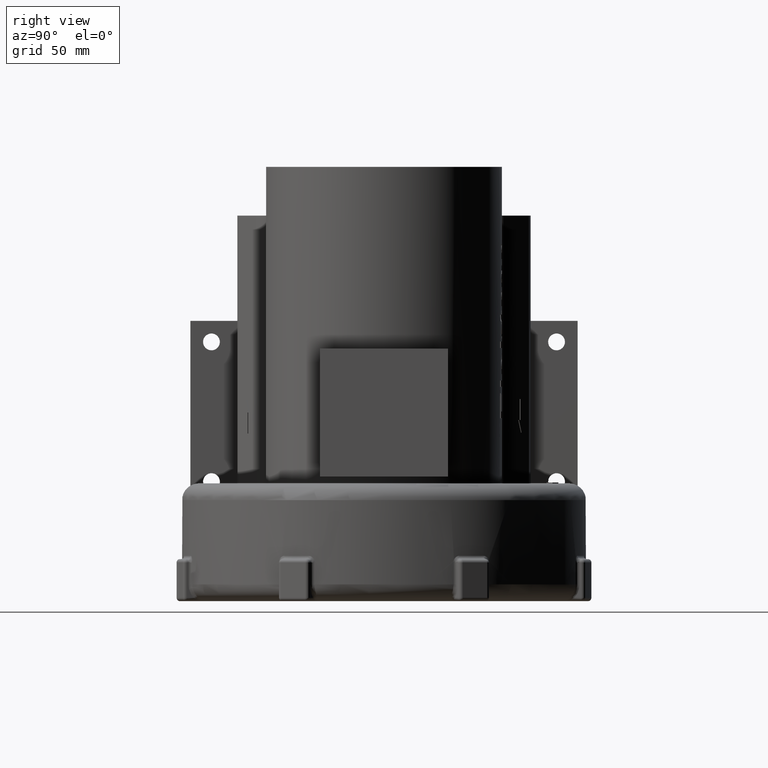
[diagram: clean part render]
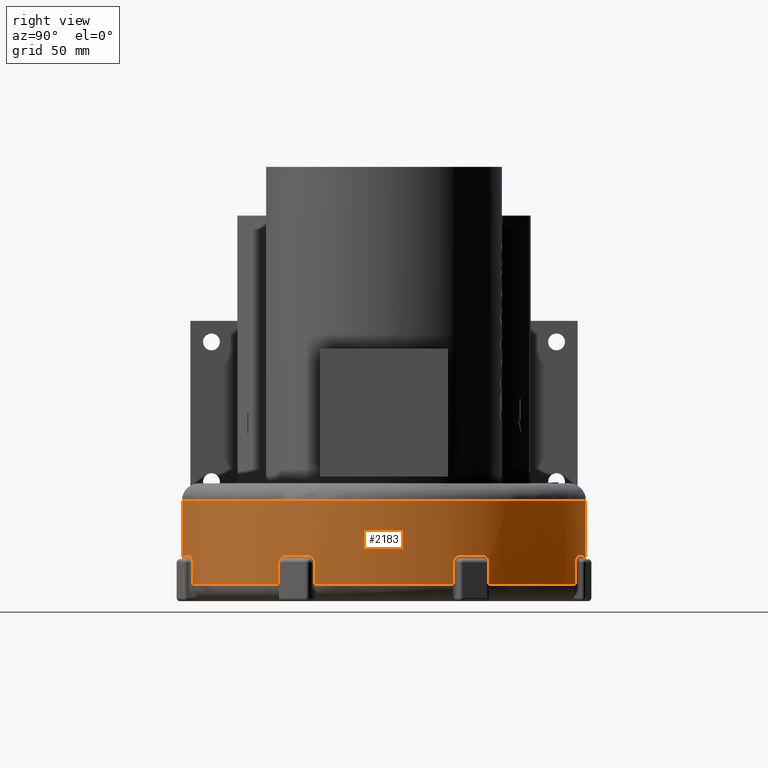
[diagram: same view with one face highlighted and labeled with its STEP entity id]
A machine part, right view. The second image highlights one B-rep face of the part: STEP entity #2183.
In plain terms, the highlighted cylindrical surface (partial cylindrical patch) has radius 120 mm, axis along (0, 0, -1).
Its self-contained STEP definition (entity closure, byte-faithful):
#1267=CARTESIAN_POINT('',(104.4694017343061,59.043577985045616,-45.000000000000007));
#1268=VERTEX_POINT('',#1267);
#1289=CARTESIAN_POINT('',(102.47074046866913,62.447957114725973,-48.999999999999993));
#1290=VERTEX_POINT('',#1289);
#1298=CARTESIAN_POINT('',(102.47074046866913,62.447957114725973,-48.999999999999993));
#1299=CARTESIAN_POINT('',(102.47074046866913,62.447957114725973,-48.105462912643702));
#1300=CARTESIAN_POINT('',(102.74490965086558,62.00145298025695,-46.602906956385659));
#1301=CARTESIAN_POINT('',(103.59579056383687,60.571180417363877,-45.272640582639482));
#1302=CARTESIAN_POINT('',(104.18078604972777,59.554243309336655,-45.000000000000007));
#1303=CARTESIAN_POINT('',(104.4694017343061,59.043577985045623,-45.000000000000007));
#1304=B_SPLINE_CURVE_WITH_KNOTS('',3,(#1298,#1299,#1300,#1301,#1302,#1303),.UNSPECIFIED.,.F.,.U.,(4,1,1,4),(0.0,0.268361126206901,0.447268543678168,0.626175961149435),.UNSPECIFIED.);
#1305=EDGE_CURVE('',#1290,#1268,#1304,.T.);
#1315=CARTESIAN_POINT('',(111.29773581250421,44.864395716536897,-45.0));
#1316=VERTEX_POINT('',#1315);
#1334=CARTESIAN_POINT('',(0.0,0.0,-45.0));
#1335=DIRECTION('',(0.0,0.0,-1.0));
#1336=DIRECTION('',(0.90096887331149,0.433883727885506,0.0));
#1337=AXIS2_PLACEMENT_3D('',#1334,#1335,#1336);
#1338=CIRCLE('',#1337,120.0);
#1339=EDGE_CURVE('',#1268,#1316,#1338,.T.);
#1375=CARTESIAN_POINT('',(112.71324158596633,41.179183711962899,-49.0));
#1376=VERTEX_POINT('',#1375);
#1396=CARTESIAN_POINT('',(111.29773581250421,44.864395716536897,-45.0));
#1397=CARTESIAN_POINT('',(111.62687634170862,44.047877515867697,-45.0));
#1398=CARTESIAN_POINT('',(112.16039797619368,42.67450897383231,-45.522485298805016));
#1399=CARTESIAN_POINT('',(112.62125882132977,41.431703972019449,-47.208786189574994));
#1400=CARTESIAN_POINT('',(112.71324158596633,41.179183711962907,-48.403310889453834));
#1401=CARTESIAN_POINT('',(112.71324158596633,41.179183711962907,-49.0));
#1402=B_SPLINE_CURVE_WITH_KNOTS('',3,(#1396,#1397,#1398,#1399,#1400,#1401),.UNSPECIFIED.,.F.,.U.,(4,1,1,4),(0.0,0.268510099745761,0.447516832909602,0.626523566073443),.UNSPECIFIED.);
#1403=EDGE_CURVE('',#1316,#1376,#1402,.T.);
#1415=CARTESIAN_POINT('',(102.47074046866913,62.447957114725973,-62.0));
#1416=VERTEX_POINT('',#1415);
#1424=CARTESIAN_POINT('',(102.47074046866913,62.447957114725973,-62.0));
#1425=DIRECTION('',(0.0,0.0,1.0));
#1426=VECTOR('',#1425,13.000000000000007);
#1427=LINE('',#1424,#1426);
#1428=EDGE_CURVE('',#1416,#1290,#1427,.T.);
#1571=CARTESIAN_POINT('',(112.71324158596634,41.179183711962907,-62.0));
#1572=VERTEX_POINT('',#1571);
#1589=CARTESIAN_POINT('',(112.71324158596633,41.179183711962907,-49.0));
#1590=DIRECTION('',(0.0,0.0,-1.0));
#1591=VECTOR('',#1590,13.0);
#1592=LINE('',#1589,#1591);
#1593=EDGE_CURVE('',#1376,#1572,#1592,.T.);
#1816=CARTESIAN_POINT('',(112.71324055923438,-41.179186522273163,-62.0));
#1817=VERTEX_POINT('',#1816);
#1818=CARTESIAN_POINT('',(0.0,0.0,-62.0));
#1819=DIRECTION('',(0.0,0.0,-1.0));
#1820=DIRECTION('',(0.0,-1.0,0.0));
#1821=AXIS2_PLACEMENT_3D('',#1818,#1819,#1820);
#1822=CIRCLE('',#1821,120.0);
#1823=EDGE_CURVE('',#1572,#1817,#1822,.T.);
#1858=CARTESIAN_POINT('',(0.0,0.0,-2.0));
#1859=DIRECTION('',(0.0,0.0,-1.0));
#1860=DIRECTION('',(0.0,-1.0,0.0));
#1861=AXIS2_PLACEMENT_3D('',#1858,#1859,#1860);
#1862=CYLINDRICAL_SURFACE('',#1861,120.0);
#1863=ORIENTED_EDGE('',*,*,#1593,.F.);
#1864=ORIENTED_EDGE('',*,*,#1403,.F.);
#1865=ORIENTED_EDGE('',*,*,#1339,.F.);
#1866=ORIENTED_EDGE('',*,*,#1305,.F.);
#1867=ORIENTED_EDGE('',*,*,#1428,.F.);
#1868=CARTESIAN_POINT('',(38.080374414942391,113.79756185620937,-62.0));
#1869=VERTEX_POINT('',#1868);
#1870=CARTESIAN_POINT('',(0.0,0.0,-62.0));
#1871=DIRECTION('',(0.0,0.0,-1.0));
#1872=DIRECTION('',(0.0,-1.0,0.0));
#1873=AXIS2_PLACEMENT_3D('',#1870,#1871,#1872);
#1874=CIRCLE('',#1873,120.0);
#1875=EDGE_CURVE('',#1869,#1416,#1874,.T.);
#1876=ORIENTED_EDGE('',*,*,#1875,.F.);
#1877=CARTESIAN_POINT('',(38.080374414942384,113.79756185620937,-49.0));
#1878=VERTEX_POINT('',#1877);
#1879=CARTESIAN_POINT('',(38.080374414942398,113.7975618562094,-49.0));
#1880=DIRECTION('',(0.0,0.0,-1.0));
#1881=VECTOR('',#1880,13.0);
#1882=LINE('',#1879,#1881);
#1883=EDGE_CURVE('',#1878,#1869,#1882,.T.);
#1884=ORIENTED_EDGE('',*,*,#1883,.F.);
#1885=CARTESIAN_POINT('',(34.316606235971541,114.98856698144073,-45.0));
#1886=VERTEX_POINT('',#1885);
#1887=CARTESIAN_POINT('',(34.316606235971548,114.98856698144073,-45.0));
#1888=CARTESIAN_POINT('',(35.160136456837719,114.73682808950133,-45.0));
#1889=CARTESIAN_POINT('',(36.567775375430756,114.29727429202964,-45.523208081520146));
#1890=CARTESIAN_POINT('',(37.825122402631671,113.88323702214376,-47.208979721699308));
#1891=CARTESIAN_POINT('',(38.080374414942376,113.7975618562094,-48.403356990773531));
#1892=CARTESIAN_POINT('',(38.080374414942376,113.7975618562094,-48.999999999999986));
#1893=B_SPLINE_CURVE_WITH_KNOTS('',3,(#1887,#1888,#1889,#1890,#1891,#1892),.UNSPECIFIED.,.F.,.U.,(4,1,1,4),(0.0,0.268489354151906,0.447482256919844,0.626475159687782),.UNSPECIFIED.);
#1894=EDGE_CURVE('',#1886,#1878,#1893,.T.);
#1895=ORIENTED_EDGE('',*,*,#1894,.F.);
#1896=CARTESIAN_POINT('',(18.973478481357958,118.49053596940747,-45.0));
#1897=VERTEX_POINT('',#1896);
#1898=CARTESIAN_POINT('',(0.0,0.0,-45.0));
#1899=DIRECTION('',(0.0,0.0,-1.0));
#1900=DIRECTION('',(0.222520946110387,0.974927909407736,0.0));
#1901=AXIS2_PLACEMENT_3D('',#1898,#1899,#1900);
#1902=CIRCLE('',#1901,119.99999999999999);
#1903=EDGE_CURVE('',#1897,#1886,#1902,.T.);
#1904=ORIENTED_EDGE('',*,*,#1903,.F.);
#1905=CARTESIAN_POINT('',(15.065682783022014,119.05051533815951,-48.999999999999986));
#1906=VERTEX_POINT('',#1905);
#1907=CARTESIAN_POINT('',(15.065682783022037,119.05051533815951,-48.999999999999986));
#1908=CARTESIAN_POINT('',(15.06568278302205,119.05051533815951,-48.105486915399531));
#1909=CARTESIAN_POINT('',(15.58564952928287,118.98648819673519,-46.602897744193115));
#1910=CARTESIAN_POINT('',(17.234701576116791,118.75992982697105,-45.272446404409017));
#1911=CARTESIAN_POINT('',(18.394290859358179,118.58327927411766,-45.000000000000007));
#1912=CARTESIAN_POINT('',(18.973478481357958,118.49053596940749,-45.0));
#1913=B_SPLINE_CURVE_WITH_KNOTS('',3,(#1907,#1908,#1909,#1910,#1911,#1912),.UNSPECIFIED.,.F.,.U.,(4,1,1,4),(0.0,0.268353925380153,0.447256542300255,0.626159159220357),.UNSPECIFIED.);
#1914=EDGE_CURVE('',#1906,#1897,#1913,.T.);
#1915=ORIENTED_EDGE('',*,*,#1914,.F.);
#1916=CARTESIAN_POINT('',(15.065682783022067,119.0505153381595,-62.0));
#1917=VERTEX_POINT('',#1916);
#1918=CARTESIAN_POINT('',(15.065682783022067,119.05051533815951,-62.0));
#1919=DIRECTION('',(0.0,0.0,1.0));
#1920=VECTOR('',#1919,13.000000000000014);
#1921=LINE('',#1918,#1920);
#1922=EDGE_CURVE('',#1917,#1906,#1921,.T.);
#1923=ORIENTED_EDGE('',*,*,#1922,.F.);
#1924=CARTESIAN_POINT('',(-65.227791388608665,100.72405487550702,-62.0));
#1925=VERTEX_POINT('',#1924);
#1926=CARTESIAN_POINT('',(0.0,0.0,-62.0));
#1927=DIRECTION('',(0.0,0.0,-1.0));
#1928=DIRECTION('',(0.0,-1.0,0.0));
#1929=AXIS2_PLACEMENT_3D('',#1926,#1927,#1928);
#1930=CIRCLE('',#1929,120.0);
#1931=EDGE_CURVE('',#1925,#1917,#1930,.T.);
#1932=ORIENTED_EDGE('',*,*,#1931,.F.);
#1933=CARTESIAN_POINT('',(-65.227791388608665,100.72405487550699,-49.0));
#1934=VERTEX_POINT('',#1933);
#1935=CARTESIAN_POINT('',(-65.227791388608665,100.72405487550702,-49.0));
#1936=DIRECTION('',(0.0,0.0,-1.0));
#1937=VECTOR('',#1936,13.0);
#1938=LINE('',#1935,#1937);
#1939=EDGE_CURVE('',#1934,#1925,#1938,.T.);
#1940=ORIENTED_EDGE('',*,*,#1939,.F.);
#1941=CARTESIAN_POINT('',(-68.505627767444054,98.524001970019469,-45.0));
#1942=VERTEX_POINT('',#1941);
#1943=CARTESIAN_POINT('',(-68.505627767444025,98.524001970019469,-45.0));
#1944=CARTESIAN_POINT('',(-67.782777914591563,99.026613333353367,-45.0));
#1945=CARTESIAN_POINT('',(-66.564323036973491,99.851056864021061,-45.522534104576238));
#1946=CARTESIAN_POINT('',(-65.454255744709712,100.57759448022696,-47.20820965593208));
#1947=CARTESIAN_POINT('',(-65.227791388608679,100.72405487550699,-48.403274462502104));
#1948=CARTESIAN_POINT('',(-65.227791388608679,100.72405487550699,-48.999999999999993));
#1949=B_SPLINE_CURVE_WITH_KNOTS('',3,(#1943,#1944,#1945,#1946,#1947,#1948),.UNSPECIFIED.,.F.,.U.,(4,1,1,4),(0.0,0.268526491874069,0.447544153123448,0.626561814372827),.UNSPECIFIED.);
#1950=EDGE_CURVE('',#1942,#1934,#1949,.T.);
#1951=ORIENTED_EDGE('',*,*,#1950,.F.);
#1952=CARTESIAN_POINT('',(-80.809861056480401,88.71170360235638,-45.0));
#1953=VERTEX_POINT('',#1952);
#1954=CARTESIAN_POINT('',(0.0,0.0,-45.0));
#1955=DIRECTION('',(0.0,0.0,-1.0));
#1956=DIRECTION('',(-0.623489792111924,0.781831490240851,0.0));
#1957=AXIS2_PLACEMENT_3D('',#1954,#1955,#1956);
#1958=CIRCLE('',#1957,119.99999999999999);
#1959=EDGE_CURVE('',#1953,#1942,#1958,.T.);
#1960=ORIENTED_EDGE('',*,*,#1959,.F.);
#1961=CARTESIAN_POINT('',(-83.684141322163228,86.005607324012374,-49.000000000000014));
#1962=VERTEX_POINT('',#1961);
#1963=CARTESIAN_POINT('',(-83.684141322163242,86.005607324012402,-49.000000000000014));
#1964=CARTESIAN_POINT('',(-83.684141322163242,86.005607324012402,-48.10546128266985));
#1965=CARTESIAN_POINT('',(-83.309825386659085,86.372273328258927,-46.602891098793656));
#1966=CARTESIAN_POINT('',(-82.104783094255566,87.520056702624274,-45.272657364762452));
#1967=CARTESIAN_POINT('',(-81.243500693380014,88.316689670896835,-44.999999999999993));
#1968=CARTESIAN_POINT('',(-80.809861056480386,88.71170360235638,-45.0));
#1969=B_SPLINE_CURVE_WITH_KNOTS('',3,(#1963,#1964,#1965,#1966,#1967,#1968),.UNSPECIFIED.,.F.,.U.,(4,1,1,4),(0.0,0.268361615199083,0.447269358665138,0.626177102131193),.UNSPECIFIED.);
#1970=EDGE_CURVE('',#1962,#1953,#1969,.T.);
#1971=ORIENTED_EDGE('',*,*,#1970,.F.);
#1972=CARTESIAN_POINT('',(-83.684141322163242,86.005607324012374,-62.0));
#1973=VERTEX_POINT('',#1972);
#1974=CARTESIAN_POINT('',(-83.684141322163242,86.005607324012374,-62.0));
#1975=DIRECTION('',(0.0,0.0,1.0));
#1976=VECTOR('',#1975,12.999999999999986);
#1977=LINE('',#1974,#1976);
#1978=EDGE_CURVE('',#1973,#1962,#1977,.T.);
#1979=ORIENTED_EDGE('',*,*,#1978,.F.);
#1980=CARTESIAN_POINT('',(-84.056348621555884,85.64187209777387,-62.0));
#1981=VERTEX_POINT('',#1980);
#1982=CARTESIAN_POINT('',(0.0,0.0,-62.0));
#1983=DIRECTION('',(0.0,0.0,-1.0));
#1984=DIRECTION('',(0.0,-1.0,0.0));
#1985=AXIS2_PLACEMENT_3D('',#1982,#1983,#1984);
#1986=CIRCLE('',#1985,120.0);
#1987=EDGE_CURVE('',#1981,#1973,#1986,.T.);
#1988=ORIENTED_EDGE('',*,*,#1987,.F.);
#1989=CARTESIAN_POINT('',(-84.056348621555884,85.64187209777387,-12.0));
#1990=VERTEX_POINT('',#1989);
#1991=CARTESIAN_POINT('',(-84.056348621555884,85.64187209777387,-62.0));
#1992=DIRECTION('',(0.0,0.0,1.0));
#1993=VECTOR('',#1992,50.0);
#1994=LINE('',#1991,#1993);
#1995=EDGE_CURVE('',#1981,#1990,#1994,.T.);
#1996=ORIENTED_EDGE('',*,*,#1995,.T.);
#1997=CARTESIAN_POINT('',(-84.056348621555884,-85.64187209777387,-12.0));
#1998=VERTEX_POINT('',#1997);
#1999=CARTESIAN_POINT('',(0.0,0.0,-12.0));
#2000=DIRECTION('',(0.0,0.0,1.0));
#2001=DIRECTION('',(0.0,-1.0,0.0));
#2002=AXIS2_PLACEMENT_3D('',#1999,#2000,#2001);
#2003=CIRCLE('',#2002,120.0);
#2004=EDGE_CURVE('',#1998,#1990,#2003,.T.);
#2005=ORIENTED_EDGE('',*,*,#2004,.F.);
#2006=CARTESIAN_POINT('',(-84.056348621555884,-85.64187209777387,-62.0));
#2007=VERTEX_POINT('',#2006);
#2008=CARTESIAN_POINT('',(-84.056348621555884,-85.64187209777387,-12.0));
#2009=DIRECTION('',(0.0,0.0,-1.0));
#2010=VECTOR('',#2009,50.0);
#2011=LINE('',#2008,#2010);
#2012=EDGE_CURVE('',#1998,#2007,#2011,.T.);
#2013=ORIENTED_EDGE('',*,*,#2012,.T.);
#2014=CARTESIAN_POINT('',(-83.684143466564635,-86.005605237492674,-62.0));
#2015=VERTEX_POINT('',#2014);
#2016=CARTESIAN_POINT('',(0.0,0.0,-62.0));
#2017=DIRECTION('',(0.0,0.0,-1.0));
#2018=DIRECTION('',(0.0,-1.0,0.0));
#2019=AXIS2_PLACEMENT_3D('',#2016,#2017,#2018);
#2020=CIRCLE('',#2019,120.0);
#2021=EDGE_CURVE('',#2015,#2007,#2020,.T.);
#2022=ORIENTED_EDGE('',*,*,#2021,.F.);
#2023=CARTESIAN_POINT('',(-83.68414346656462,-86.005605237492688,-49.0));
#2024=VERTEX_POINT('',#2023);
#2025=CARTESIAN_POINT('',(-83.684143466564635,-86.005605237492674,-49.0));
#2026=DIRECTION('',(0.0,0.0,-1.0));
#2027=VECTOR('',#2026,13.0);
#2028=LINE('',#2025,#2027);
#2029=EDGE_CURVE('',#2024,#2015,#2028,.T.);
#2030=ORIENTED_EDGE('',*,*,#2029,.F.);
#2031=CARTESIAN_POINT('',(-80.809863268353652,-88.711701587501892,-45.0));
#2032=VERTEX_POINT('',#2031);
#2033=CARTESIAN_POINT('',(-80.809863268353652,-88.711701587501878,-45.0));
#2034=CARTESIAN_POINT('',(-81.460725402366009,-88.118813849865489,-45.0));
#2035=CARTESIAN_POINT('',(-82.535354715925294,-87.114624996116476,-45.522253474495891));
#2036=CARTESIAN_POINT('',(-83.491027169407829,-86.193740990480961,-47.20817924668804));
#2037=CARTESIAN_POINT('',(-83.68414346656462,-86.005605237492716,-48.403271654670519));
#2038=CARTESIAN_POINT('',(-83.68414346656462,-86.005605237492716,-49.0));
#2039=B_SPLINE_CURVE_WITH_KNOTS('',3,(#2033,#2034,#2035,#2036,#2037,#2038),.UNSPECIFIED.,.F.,.U.,(4,1,1,4),(0.0,0.26852775539827,0.447546258997117,0.626564762595963),.UNSPECIFIED.);
#2040=EDGE_CURVE('',#2032,#2024,#2039,.T.);
#2041=ORIENTED_EDGE('',*,*,#2040,.F.);
#2042=CARTESIAN_POINT('',(-68.505630223970101,-98.524000261949723,-45.000000000000007));
#2043=VERTEX_POINT('',#2042);
#2044=CARTESIAN_POINT('',(0.0,0.0,-45.0));
#2045=DIRECTION('',(0.0,0.0,-1.0));
#2046=DIRECTION('',(-0.623489811605543,-0.781831474695209,0.0));
#2047=AXIS2_PLACEMENT_3D('',#2044,#2045,#2046);
#2048=CIRCLE('',#2047,120.0);
#2049=EDGE_CURVE('',#2043,#2032,#2048,.T.);
#2050=ORIENTED_EDGE('',*,*,#2049,.F.);
#2051=CARTESIAN_POINT('',(-65.22779389998918,-100.72405324916453,-49.00000000000005));
#2052=VERTEX_POINT('',#2051);
#2053=CARTESIAN_POINT('',(-65.227793899989194,-100.72405324916454,-49.00000000000005));
#2054=CARTESIAN_POINT('',(-65.227793899989152,-100.72405324916454,-48.105461565575482));
#2055=CARTESIAN_POINT('',(-65.668555642383566,-100.44071589382484,-46.60289484919636));
#2056=CARTESIAN_POINT('',(-67.055719618126901,-99.521285123602013,-45.272651818783856));
#2057=CARTESIAN_POINT('',(-68.024026371797575,-98.858868672932374,-44.999999999999986));
#2058=CARTESIAN_POINT('',(-68.505630223970101,-98.524000261949766,-45.000000000000007));
#2059=B_SPLINE_CURVE_WITH_KNOTS('',3,(#2053,#2054,#2055,#2056,#2057,#2058),.UNSPECIFIED.,.F.,.U.,(4,1,1,4),(0.0,0.268361530327371,0.447269217212284,0.626176904097198),.UNSPECIFIED.);
#2060=EDGE_CURVE('',#2052,#2043,#2059,.T.);
#2061=ORIENTED_EDGE('',*,*,#2060,.F.);
#2062=CARTESIAN_POINT('',(-65.22779389998918,-100.72405324916453,-62.0));
#2063=VERTEX_POINT('',#2062);
#2064=CARTESIAN_POINT('',(-65.22779389998918,-100.72405324916454,-62.0));
#2065=DIRECTION('',(0.0,0.0,1.0));
#2066=VECTOR('',#2065,12.999999999999957);
#2067=LINE('',#2064,#2066);
#2068=EDGE_CURVE('',#2063,#2052,#2067,.T.);
#2069=ORIENTED_EDGE('',*,*,#2068,.F.);
#2070=CARTESIAN_POINT('',(15.065679814702833,-119.05051571379629,-62.0));
#2071=VERTEX_POINT('',#2070);
#2072=CARTESIAN_POINT('',(0.0,0.0,-62.0));
#2073=DIRECTION('',(0.0,0.0,-1.0));
#2074=DIRECTION('',(0.0,-1.0,0.0));
#2075=AXIS2_PLACEMENT_3D('',#2072,#2073,#2074);
#2076=CIRCLE('',#2075,120.0);
#2077=EDGE_CURVE('',#2071,#2063,#2076,.T.);
#2078=ORIENTED_EDGE('',*,*,#2077,.F.);
#2079=CARTESIAN_POINT('',(15.065679814702831,-119.05051571379629,-48.999999999999993));
#2080=VERTEX_POINT('',#2079);
#2081=CARTESIAN_POINT('',(15.065679814702833,-119.05051571379629,-48.999999999999993));
#2082=DIRECTION('',(0.0,0.0,-1.0));
#2083=VECTOR('',#2082,13.000000000000007);
#2084=LINE('',#2081,#2083);
#2085=EDGE_CURVE('',#2080,#2071,#2084,.T.);
#2086=ORIENTED_EDGE('',*,*,#2085,.F.);
#2087=CARTESIAN_POINT('',(18.97347552700089,-118.49053644247837,-45.0));
#2088=VERTEX_POINT('',#2087);
#2089=CARTESIAN_POINT('',(18.973475527000883,-118.49053644247839,-45.0));
#2090=CARTESIAN_POINT('',(18.394125783674834,-118.58330569229867,-45.0));
#2091=CARTESIAN_POINT('',(17.228200206941928,-118.76083826895231,-45.272746265165793));
#2092=CARTESIAN_POINT('',(15.581162904860413,-118.98705596680961,-46.613529431570385));
#2093=CARTESIAN_POINT('',(15.065679814702836,-119.05051571379629,-48.105236534394834));
#2094=CARTESIAN_POINT('',(15.065679814702834,-119.05051571379629,-48.999999999999993));
#2095=B_SPLINE_CURVE_WITH_KNOTS('',3,(#2089,#2090,#2091,#2092,#2093,#2094),.UNSPECIFIED.,.F.,.U.,(4,1,1,4),(7.412550E-016,0.178952693121,0.357905386241999,0.626334425923498),.UNSPECIFIED.);
#2096=EDGE_CURVE('',#2088,#2080,#2095,.T.);
#2097=ORIENTED_EDGE('',*,*,#2096,.F.);
#2098=CARTESIAN_POINT('',(34.316603368929997,-114.98856783706606,-45.0));
#2099=VERTEX_POINT('',#2098);
#2100=CARTESIAN_POINT('',(0.0,0.0,-45.0));
#2101=DIRECTION('',(0.0,0.0,-1.0));
#2102=DIRECTION('',(0.222520921802242,-0.974927914955911,0.0));
#2103=AXIS2_PLACEMENT_3D('',#2100,#2101,#2102);
#2104=CIRCLE('',#2103,119.99999999999999);
#2105=EDGE_CURVE('',#2099,#2088,#2104,.T.);
#2106=ORIENTED_EDGE('',*,*,#2105,.F.);
#2107=CARTESIAN_POINT('',(38.080371577596509,-113.79756280567779,-49.000000000000014));
#2108=VERTEX_POINT('',#2107);
#2109=CARTESIAN_POINT('',(38.080371577596502,-113.79756280567777,-49.000000000000014));
#2110=CARTESIAN_POINT('',(38.080371577596502,-113.79756280567777,-48.105481051573094));
#2111=CARTESIAN_POINT('',(37.584203776714517,-113.96545326695708,-46.60303512466183));
#2112=CARTESIAN_POINT('',(36.000236067093667,-114.47680441425641,-45.272575454064643));
#2113=CARTESIAN_POINT('',(34.878676881403933,-114.8208254766335,-45.0));
#2114=CARTESIAN_POINT('',(34.316603368929997,-114.98856783706606,-45.0));
#2115=B_SPLINE_CURVE_WITH_KNOTS('',3,(#2109,#2110,#2111,#2112,#2113,#2114),.UNSPECIFIED.,.F.,.U.,(4,1,1,4),(0.0,0.268355684528082,0.44725947421347,0.626163263898859),.UNSPECIFIED.);
#2116=EDGE_CURVE('',#2108,#2099,#2115,.T.);
#2117=ORIENTED_EDGE('',*,*,#2116,.F.);
#2118=CARTESIAN_POINT('',(38.080371577596495,-113.79756280567779,-62.0));
#2119=VERTEX_POINT('',#2118);
#2120=CARTESIAN_POINT('',(38.080371577596502,-113.79756280567779,-62.0));
#2121=DIRECTION('',(0.0,0.0,1.0));
#2122=VECTOR('',#2121,12.999999999999986);
#2123=LINE('',#2120,#2122);
#2124=EDGE_CURVE('',#2119,#2108,#2123,.T.);
#2125=ORIENTED_EDGE('',*,*,#2124,.F.);
#2126=CARTESIAN_POINT('',(102.47073891163701,-62.447959669657109,-62.0));
#2127=VERTEX_POINT('',#2126);
#2128=CARTESIAN_POINT('',(0.0,0.0,-62.0));
#2129=DIRECTION('',(0.0,0.0,-1.0));
#2130=DIRECTION('',(0.0,-1.0,0.0));
#2131=AXIS2_PLACEMENT_3D('',#2128,#2129,#2130);
#2132=CIRCLE('',#2131,120.0);
#2133=EDGE_CURVE('',#2127,#2119,#2132,.T.);
#2134=ORIENTED_EDGE('',*,*,#2133,.F.);
#2135=CARTESIAN_POINT('',(102.47073891163701,-62.447959669657095,-49.0));
#2136=VERTEX_POINT('',#2135);
#2137=CARTESIAN_POINT('',(102.47073891163701,-62.447959669657102,-49.0));
#2138=DIRECTION('',(0.0,0.0,-1.0));
#2139=VECTOR('',#2138,13.0);
#2140=LINE('',#2137,#2139);
#2141=EDGE_CURVE('',#2136,#2127,#2140,.T.);
#2142=ORIENTED_EDGE('',*,*,#2141,.F.);
#2143=CARTESIAN_POINT('',(104.4694002621563,-59.043580589809892,-45.0));
#2144=VERTEX_POINT('',#2143);
#2145=CARTESIAN_POINT('',(104.4694002621563,-59.043580589809899,-45.0));
#2146=CARTESIAN_POINT('',(104.03621570557534,-59.810040387416592,-45.0));
#2147=CARTESIAN_POINT('',(103.29590389855254,-61.081907804751083,-45.522622857522109));
#2148=CARTESIAN_POINT('',(102.61121738413263,-62.217759504635254,-47.208474905689542));
#2149=CARTESIAN_POINT('',(102.47073891163703,-62.447959669657102,-48.403282396099634));
#2150=CARTESIAN_POINT('',(102.47073891163703,-62.447959669657102,-48.999999999999993));
#2151=B_SPLINE_CURVE_WITH_KNOTS('',3,(#2145,#2146,#2147,#2148,#2149,#2150),.UNSPECIFIED.,.F.,.U.,(4,1,1,4),(0.0,0.268522921755166,0.447538202925277,0.626553484095387),.UNSPECIFIED.);
#2152=EDGE_CURVE('',#2144,#2136,#2151,.T.);
#2153=ORIENTED_EDGE('',*,*,#2152,.F.);
#2154=CARTESIAN_POINT('',(111.29773469388786,-44.864398491553963,-45.000000000000014));
#2155=VERTEX_POINT('',#2154);
#2156=CARTESIAN_POINT('',(0.0,0.0,-45.0));
#2157=DIRECTION('',(0.0,0.0,-1.0));
#2158=DIRECTION('',(0.900968862493348,-0.43388375034961,0.0));
#2159=AXIS2_PLACEMENT_3D('',#2156,#2157,#2158);
#2160=CIRCLE('',#2159,120.0);
#2161=EDGE_CURVE('',#2155,#2144,#2160,.T.);
#2162=ORIENTED_EDGE('',*,*,#2161,.F.);
#2163=CARTESIAN_POINT('',(112.71324055923438,-41.179186522273127,-49.000000000000071));
#2164=VERTEX_POINT('',#2163);
#2165=CARTESIAN_POINT('',(112.71324055923441,-41.179186522273163,-49.000000000000092));
#2166=CARTESIAN_POINT('',(112.71324055923441,-41.179186522273099,-48.105469278781491));
#2167=CARTESIAN_POINT('',(112.53511217364664,-41.671876117686196,-46.602954371141585));
#2168=CARTESIAN_POINT('',(111.94736280880261,-43.228968082638971,-45.272611977499551));
#2169=CARTESIAN_POINT('',(111.51703842470576,-44.32035891294359,-44.999999999999986));
#2170=CARTESIAN_POINT('',(111.29773469388786,-44.864398491553985,-45.000000000000014));
#2171=B_SPLINE_CURVE_WITH_KNOTS('',3,(#2165,#2166,#2167,#2168,#2169,#2170),.UNSPECIFIED.,.F.,.U.,(4,1,1,4),(0.0,0.268359216365539,0.447265360609232,0.626171504852925),.UNSPECIFIED.);
#2172=EDGE_CURVE('',#2164,#2155,#2171,.T.);
#2173=ORIENTED_EDGE('',*,*,#2172,.F.);
#2174=CARTESIAN_POINT('',(112.71324055923438,-41.179186522273163,-62.0));
#2175=DIRECTION('',(0.0,0.0,1.0));
#2176=VECTOR('',#2175,12.999999999999929);
#2177=LINE('',#2174,#2176);
#2178=EDGE_CURVE('',#1817,#2164,#2177,.T.);
#2179=ORIENTED_EDGE('',*,*,#2178,.F.);
#2180=ORIENTED_EDGE('',*,*,#1823,.F.);
#2181=EDGE_LOOP('',(#1863,#1864,#1865,#1866,#1867,#1876,#1884,#1895,#1904,#1915,#1923,#1932,#1940,#1951,#1960,#1971,#1979,#1988,#1996,#2005,#2013,#2022,#2030,#2041,#2050,#2061,#2069,#2078,#2086,#2097,#2106,#2117,#2125,#2134,#2142,#2153,#2162,#2173,#2179,#2180));
#2182=FACE_OUTER_BOUND('',#2181,.T.);
#2183=ADVANCED_FACE('',(#2182),#1862,.T.);